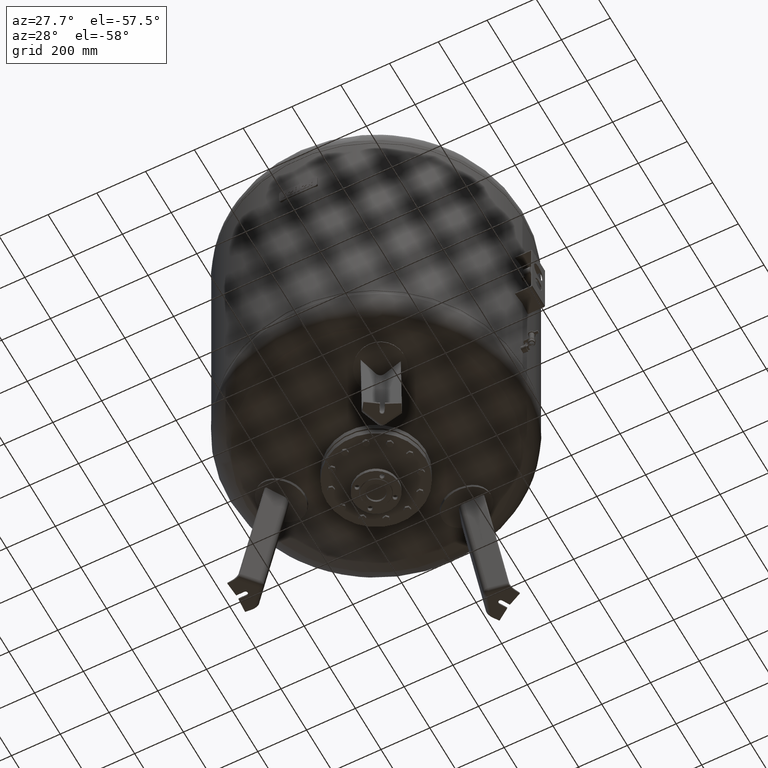
[diagram: clean part render]
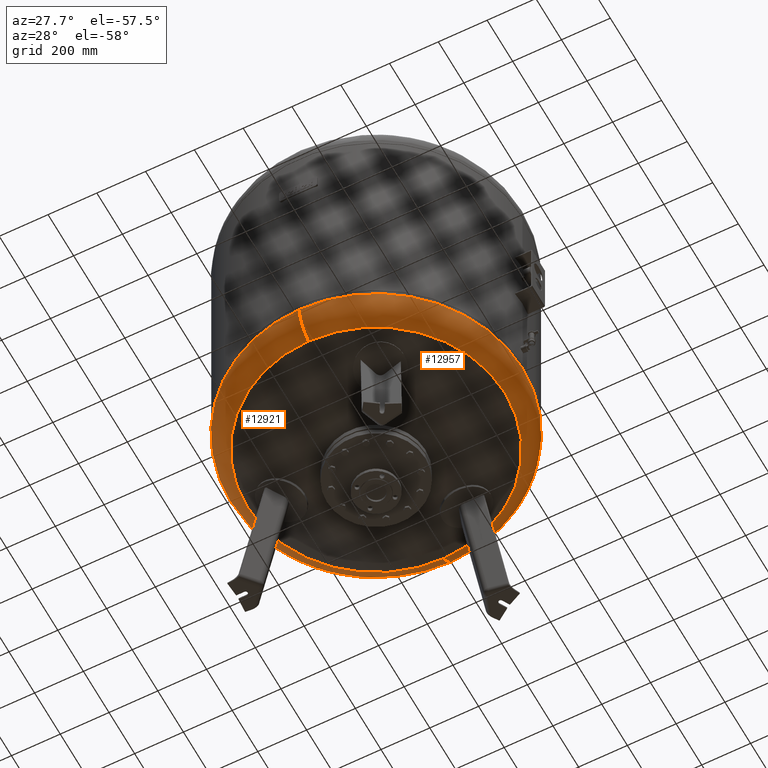
[diagram: same view with one multi-face feature highlighted, each face labeled with its STEP entity id]
A machine part, auxiliary view. The highlighted faces form ONE feature: a constant-radius fillet chain: 2 tangent blend faces with common blend radius 127 mm. The faces share edges in the B-rep.
Their STEP definitions:
[1] entity #12921 (Torus):
#12826=CARTESIAN_POINT('',(-600.0,-4.336858E-014,695.087542566272190));
#12827=VERTEX_POINT('',#12826);
#12851=CARTESIAN_POINT('',(-1.445307E-013,600.0,695.087542566272420));
#12852=VERTEX_POINT('',#12851);
#12860=CARTESIAN_POINT('',(-3.551733E-014,-4.336858E-014,695.087542566272300));
#12861=DIRECTION('',(0.0,0.0,1.0));
#12862=DIRECTION('',(-1.0,0.0,0.0));
#12863=AXIS2_PLACEMENT_3D('',#12860,#12861,#12862);
#12864=CIRCLE('',#12863,600.0);
#12865=EDGE_CURVE('',#12852,#12827,#12864,.T.);
#12870=CARTESIAN_POINT('',(-7.105427E-014,-4.336858E-014,695.087542566272300));
#12871=DIRECTION('',(-1.504413E-016,-1.836970E-016,1.0));
#12872=DIRECTION('',(0.0,-1.0,0.0));
#12873=AXIS2_PLACEMENT_3D('',#12870,#12871,#12872);
#12874=TOROIDAL_SURFACE('',#12873,472.999999999999890,127.000000000000010);
#12875=CARTESIAN_POINT('',(-7.105427E-014,-600.0,695.087542566272190));
#12876=VERTEX_POINT('',#12875);
#12877=CARTESIAN_POINT('',(-5.387807E-014,-528.621296296296240,580.915429516194880));
#12878=VERTEX_POINT('',#12877);
#12879=CARTESIAN_POINT('',(-7.105427E-014,-472.999999999999940,695.087542566272190));
#12880=DIRECTION('',(1.0,0.0,0.0));
#12881=DIRECTION('',(0.0,-1.0,0.0));
#12882=AXIS2_PLACEMENT_3D('',#12879,#12880,#12881);
#12883=CIRCLE('',#12882,127.000000000000010);
#12884=EDGE_CURVE('',#12876,#12878,#12883,.T.);
#12885=ORIENTED_EDGE('',*,*,#12884,.F.);
#12886=CARTESIAN_POINT('',(-3.551733E-014,-4.336858E-014,695.087542566272300));
#12887=DIRECTION('',(0.0,0.0,1.0));
#12888=DIRECTION('',(-1.0,0.0,0.0));
#12889=AXIS2_PLACEMENT_3D('',#12886,#12887,#12888);
#12890=CIRCLE('',#12889,600.0);
#12891=EDGE_CURVE('',#12827,#12876,#12890,.T.);
#12892=ORIENTED_EDGE('',*,*,#12891,.F.);
#12893=ORIENTED_EDGE('',*,*,#12865,.F.);
#12894=CARTESIAN_POINT('',(-1.186134E-013,528.621296296296240,580.915429516195100));
#12895=VERTEX_POINT('',#12894);
#12896=CARTESIAN_POINT('',(-1.289782E-013,472.999999999999830,695.087542566272420));
#12897=DIRECTION('',(-1.0,0.0,0.0));
#12898=DIRECTION('',(0.0,1.0,0.0));
#12899=AXIS2_PLACEMENT_3D('',#12896,#12897,#12898);
#12900=CIRCLE('',#12899,127.000000000000010);
#12901=EDGE_CURVE('',#12852,#12895,#12900,.T.);
#12902=ORIENTED_EDGE('',*,*,#12901,.T.);
#12903=CARTESIAN_POINT('',(-528.621296296296240,-2.239550E-014,580.915429516194990));
#12904=VERTEX_POINT('',#12903);
#12905=CARTESIAN_POINT('',(-1.834112E-014,-2.239550E-014,580.915429516194990));
#12906=DIRECTION('',(0.0,0.0,1.0));
#12907=DIRECTION('',(-1.0,0.0,0.0));
#12908=AXIS2_PLACEMENT_3D('',#12905,#12906,#12907);
#12909=CIRCLE('',#12908,528.621296296296240);
#12910=EDGE_CURVE('',#12895,#12904,#12909,.T.);
#12911=ORIENTED_EDGE('',*,*,#12910,.T.);
#12912=CARTESIAN_POINT('',(-1.834112E-014,-2.239550E-014,580.915429516194990));
#12913=DIRECTION('',(0.0,0.0,1.0));
#12914=DIRECTION('',(-1.0,0.0,0.0));
#12915=AXIS2_PLACEMENT_3D('',#12912,#12913,#12914);
#12916=CIRCLE('',#12915,528.621296296296240);
#12917=EDGE_CURVE('',#12904,#12878,#12916,.T.);
#12918=ORIENTED_EDGE('',*,*,#12917,.T.);
#12919=EDGE_LOOP('',(#12885,#12892,#12893,#12902,#12911,#12918));
#12920=FACE_OUTER_BOUND('',#12919,.T.);
#12921=ADVANCED_FACE('',(#12920),#12874,.T.);
[2] entity #12957 (Torus):
#12843=CARTESIAN_POINT('',(599.999999999999890,3.010780E-014,695.087542566272300));
#12844=VERTEX_POINT('',#12843);
#12851=CARTESIAN_POINT('',(-1.445307E-013,600.0,695.087542566272420));
#12852=VERTEX_POINT('',#12851);
#12853=CARTESIAN_POINT('',(-3.551733E-014,-4.336858E-014,695.087542566272300));
#12854=DIRECTION('',(0.0,0.0,1.0));
#12855=DIRECTION('',(-1.0,0.0,0.0));
#12856=AXIS2_PLACEMENT_3D('',#12853,#12854,#12855);
#12857=CIRCLE('',#12856,600.0);
#12858=EDGE_CURVE('',#12844,#12852,#12857,.T.);
#12875=CARTESIAN_POINT('',(-7.105427E-014,-600.0,695.087542566272190));
#12876=VERTEX_POINT('',#12875);
#12877=CARTESIAN_POINT('',(-5.387807E-014,-528.621296296296240,580.915429516194880));
#12878=VERTEX_POINT('',#12877);
#12879=CARTESIAN_POINT('',(-7.105427E-014,-472.999999999999940,695.087542566272190));
#12880=DIRECTION('',(1.0,0.0,0.0));
#12881=DIRECTION('',(0.0,-1.0,0.0));
#12882=AXIS2_PLACEMENT_3D('',#12879,#12880,#12881);
#12883=CIRCLE('',#12882,127.000000000000010);
#12884=EDGE_CURVE('',#12876,#12878,#12883,.T.);
#12894=CARTESIAN_POINT('',(-1.186134E-013,528.621296296296240,580.915429516195100));
#12895=VERTEX_POINT('',#12894);
#12896=CARTESIAN_POINT('',(-1.289782E-013,472.999999999999830,695.087542566272420));
#12897=DIRECTION('',(-1.0,0.0,0.0));
#12898=DIRECTION('',(0.0,1.0,0.0));
#12899=AXIS2_PLACEMENT_3D('',#12896,#12897,#12898);
#12900=CIRCLE('',#12899,127.000000000000010);
#12901=EDGE_CURVE('',#12852,#12895,#12900,.T.);
#12929=CARTESIAN_POINT('',(-1.834112E-014,-2.239550E-014,580.915429516194990));
#12930=DIRECTION('',(0.0,0.0,1.0));
#12931=DIRECTION('',(-1.0,0.0,0.0));
#12932=AXIS2_PLACEMENT_3D('',#12929,#12930,#12931);
#12933=CIRCLE('',#12932,528.621296296296240);
#12934=EDGE_CURVE('',#12878,#12895,#12933,.T.);
#12939=CARTESIAN_POINT('',(-7.105427E-014,-4.336858E-014,695.087542566272300));
#12940=DIRECTION('',(-1.504413E-016,-1.836970E-016,1.0));
#12941=DIRECTION('',(0.0,-1.0,0.0));
#12942=AXIS2_PLACEMENT_3D('',#12939,#12940,#12941);
#12943=TOROIDAL_SURFACE('',#12942,472.999999999999890,127.000000000000010);
#12944=ORIENTED_EDGE('',*,*,#12884,.T.);
#12945=ORIENTED_EDGE('',*,*,#12934,.T.);
#12946=ORIENTED_EDGE('',*,*,#12901,.F.);
#12947=ORIENTED_EDGE('',*,*,#12858,.F.);
#12948=CARTESIAN_POINT('',(-3.551733E-014,-4.336858E-014,695.087542566272300));
#12949=DIRECTION('',(0.0,0.0,1.0));
#12950=DIRECTION('',(-1.0,0.0,0.0));
#12951=AXIS2_PLACEMENT_3D('',#12948,#12949,#12950);
#12952=CIRCLE('',#12951,600.0);
#12953=EDGE_CURVE('',#12876,#12844,#12952,.T.);
#12954=ORIENTED_EDGE('',*,*,#12953,.F.);
#12955=EDGE_LOOP('',(#12944,#12945,#12946,#12947,#12954));
#12956=FACE_OUTER_BOUND('',#12955,.T.);
#12957=ADVANCED_FACE('',(#12956),#12943,.T.);